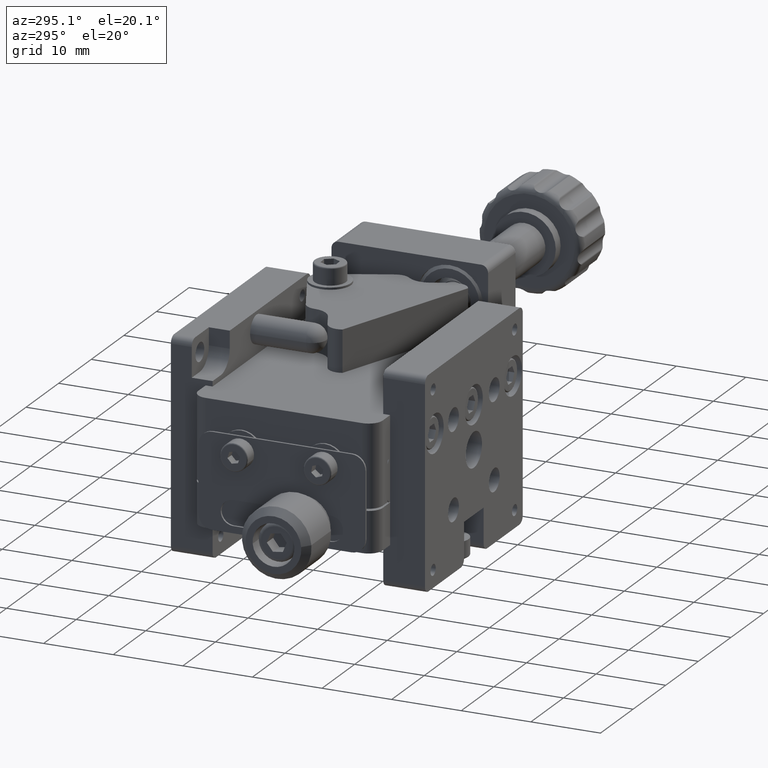
[diagram: clean part render]
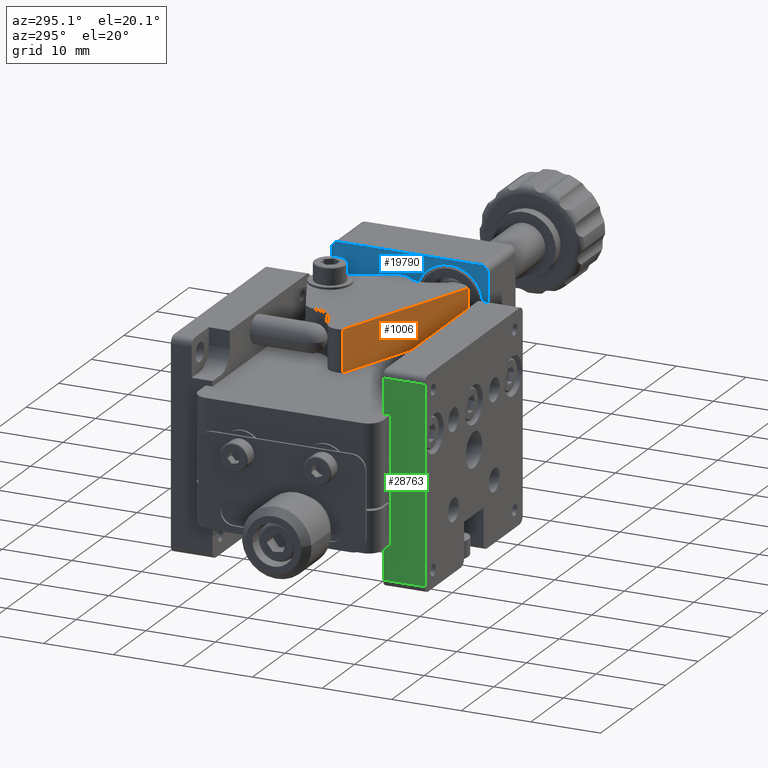
[diagram: same view with three faces highlighted in distinct colors, each labeled with its STEP entity id]
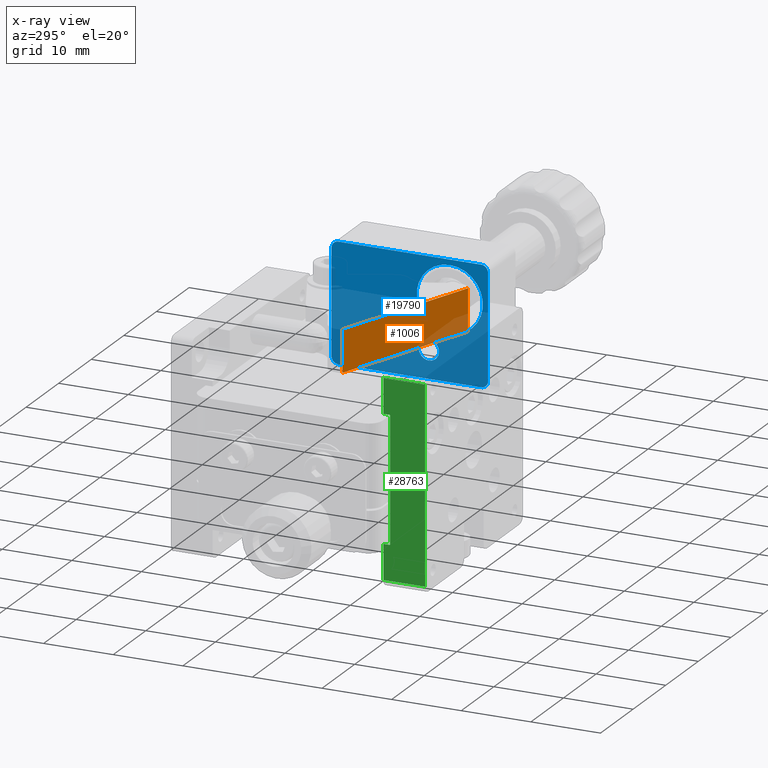
[diagram: x-ray of the same camera — body ghosted, the three highlighted faces saturated]
A machine part, auxiliary view with three faces highlighted in distinct colors.
The next image is the same camera in x-ray (body ghosted, the three faces saturated) — at least one of them is partly hidden behind the body in this view.
Their STEP definitions:

[orange] entity #1006 — the highlighted planar face has unit normal (0.3611, 0.9325, 0).
#252 = LINE ( 'NONE', #29475, #18531 ) ;
#384 = CARTESIAN_POINT ( 'NONE',  ( -3.687925685693755000, -21.24121784233175000, 39.00000000000002100 ) ) ;
#871 = CARTESIAN_POINT ( 'NONE',  ( 17.41283810770349300, -29.41176050088621000, 39.00000000000002100 ) ) ;
#1006 = ADVANCED_FACE ( 'NONE', ( #27394 ), #30885, .F. ) ;
#1494 = LINE ( 'NONE', #15317, #18598 ) ;
#1766 = DIRECTION ( 'NONE',  ( -0.9325308229079210000, 0.3610903824898630300, 0.0000000000000000000 ) ) ;
#2895 = VECTOR ( 'NONE', #22702, 1000.000000000000000 ) ;
#3777 = EDGE_CURVE ( 'NONE', #11350, #31624, #1494, .T. ) ;
#4632 = ORIENTED_EDGE ( 'NONE', *, *, #32793, .F. ) ;
#4745 = LINE ( 'NONE', #9566, #9890 ) ;
#5367 = CARTESIAN_POINT ( 'NONE',  ( -3.687925685693755000, -21.24121784233175000, 39.00000000000002100 ) ) ;
#7875 = DIRECTION ( 'NONE',  ( 0.3610903824898630800, 0.9325308229079211100, 0.0000000000000000000 ) ) ;
#7884 = ORIENTED_EDGE ( 'NONE', *, *, #3777, .T. ) ;
#8190 = DIRECTION ( 'NONE',  ( -0.9325308229079211100, 0.3610903824898630800, 0.0000000000000000000 ) ) ;
#8441 = LINE ( 'NONE', #5367, #2895 ) ;
#8976 = VERTEX_POINT ( 'NONE', #28725 ) ;
#9566 = CARTESIAN_POINT ( 'NONE',  ( -3.687925685693755000, -21.24121784233175000, 39.00000000000002100 ) ) ;
#9890 = VECTOR ( 'NONE', #32728, 1000.000000000000100 ) ;
#11350 = VERTEX_POINT ( 'NONE', #871 ) ;
#15317 = CARTESIAN_POINT ( 'NONE',  ( 17.41283810770349300, -29.41176050088621000, 39.00000000000002100 ) ) ;
#16067 = EDGE_LOOP ( 'NONE', ( #24706, #4632, #32922, #7884 ) ) ;
#16108 = EDGE_CURVE ( 'NONE', #11350, #16543, #4745, .T. ) ;
#16543 = VERTEX_POINT ( 'NONE', #27098 ) ;
#17682 = AXIS2_PLACEMENT_3D ( 'NONE', #384, #7875, #8190 ) ;
#18531 = VECTOR ( 'NONE', #1766, 1000.000000000000100 ) ;
#18598 = VECTOR ( 'NONE', #22799, 1000.000000000000000 ) ;
#22327 = EDGE_CURVE ( 'NONE', #31624, #8976, #252, .T. ) ;
#22702 = DIRECTION ( 'NONE',  ( 0.0000000000000000000, 0.0000000000000000000, 1.000000000000000000 ) ) ;
#22799 = DIRECTION ( 'NONE',  ( 0.0000000000000000000, 0.0000000000000000000, 1.000000000000000000 ) ) ;
#24706 = ORIENTED_EDGE ( 'NONE', *, *, #22327, .T. ) ;
#26193 = CARTESIAN_POINT ( 'NONE',  ( 17.41283810770349300, -29.41176050088621000, 45.00000000000002800 ) ) ;
#27098 = CARTESIAN_POINT ( 'NONE',  ( -3.687925685693722100, -21.24121784233177500, 39.00000000000002100 ) ) ;
#27394 = FACE_OUTER_BOUND ( 'NONE', #16067, .T. ) ;
#28725 = CARTESIAN_POINT ( 'NONE',  ( -3.687925685693755000, -21.24121784233175000, 45.00000000000002800 ) ) ;
#29475 = CARTESIAN_POINT ( 'NONE',  ( -3.687925685693755000, -21.24121784233175000, 45.00000000000002800 ) ) ;
#30885 = PLANE ( 'NONE',  #17682 ) ;
#31624 = VERTEX_POINT ( 'NONE', #26193 ) ;
#32728 = DIRECTION ( 'NONE',  ( -0.9325308229079210000, 0.3610903824898630300, 0.0000000000000000000 ) ) ;
#32793 = EDGE_CURVE ( 'NONE', #16543, #8976, #8441, .T. ) ;
#32922 = ORIENTED_EDGE ( 'NONE', *, *, #16108, .F. ) ;

[blue] entity #19790 — the highlighted planar face has unit normal (-1, 0, 0).
#114 = LINE ( 'NONE', #21206, #25599 ) ;
#190 = VERTEX_POINT ( 'NONE', #32283 ) ;
#464 = DIRECTION ( 'NONE',  ( 0.0000000000000000000, 0.0000000000000000000, 1.000000000000000000 ) ) ;
#587 = VECTOR ( 'NONE', #6408, 1000.000000000000000 ) ;
#818 = DIRECTION ( 'NONE',  ( 1.000000000000000000, -1.804112415015876900E-016, -6.984547439002462700E-032 ) ) ;
#852 = CARTESIAN_POINT ( 'NONE',  ( 18.76904537260123400, -23.13851180073592000, 33.54999999999999000 ) ) ;
#1235 = CARTESIAN_POINT ( 'NONE',  ( 18.76904537260123400, -26.13851180073595200, 42.49999999999999300 ) ) ;
#1767 = VERTEX_POINT ( 'NONE', #3693 ) ;
#2137 = ORIENTED_EDGE ( 'NONE', *, *, #2536, .T. ) ;
#2238 = DIRECTION ( 'NONE',  ( -1.000000000000000000, 1.804112415015876700E-016, 1.455977322838231900E-031 ) ) ;
#2473 = EDGE_CURVE ( 'NONE', #29333, #9446, #16326, .T. ) ;
#2536 = EDGE_CURVE ( 'NONE', #11380, #7956, #18326, .T. ) ;
#2666 = CARTESIAN_POINT ( 'NONE',  ( 18.76904537260123400, -9.138511800735864600, 47.00000000000007100 ) ) ;
#3636 = DIRECTION ( 'NONE',  ( 1.000000000000000000, -1.804112415015876900E-016, -6.984547439002462700E-032 ) ) ;
#3665 = CIRCLE ( 'NONE', #15216, 1.000000000000007800 ) ;
#3693 = CARTESIAN_POINT ( 'NONE',  ( 18.76904537260123400, -23.13851180073592000, 36.44999999999999600 ) ) ;
#4437 = FACE_BOUND ( 'NONE', #22384, .T. ) ;
#5089 = AXIS2_PLACEMENT_3D ( 'NONE', #33044, #25561, #17760 ) ;
#5497 = VERTEX_POINT ( 'NONE', #31947 ) ;
#5643 = EDGE_CURVE ( 'NONE', #29012, #15700, #32910, .T. ) ;
#5809 = CARTESIAN_POINT ( 'NONE',  ( 18.76904537260123400, -9.138511800735882300, 31.99999999999999300 ) ) ;
#6215 = LINE ( 'NONE', #27087, #587 ) ;
#6408 = DIRECTION ( 'NONE',  ( -1.804112415015852800E-016, -1.000000000000000000, -1.032160468206200300E-016 ) ) ;
#6580 = ORIENTED_EDGE ( 'NONE', *, *, #2473, .T. ) ;
#7208 = AXIS2_PLACEMENT_3D ( 'NONE', #23674, #10983, #16093 ) ;
#7935 = DIRECTION ( 'NONE',  ( 1.000000000000000000, -1.804112415015876900E-016, -6.984547439002462700E-032 ) ) ;
#7956 = VERTEX_POINT ( 'NONE', #28095 ) ;
#8024 = EDGE_CURVE ( 'NONE', #190, #5497, #20306, .T. ) ;
#8271 = EDGE_CURVE ( 'NONE', #9446, #29333, #9974, .T. ) ;
#8309 = DIRECTION ( 'NONE',  ( 0.0000000000000000000, 0.0000000000000000000, -1.000000000000000000 ) ) ;
#9137 = DIRECTION ( 'NONE',  ( 0.0000000000000000000, 0.0000000000000000000, -1.000000000000000000 ) ) ;
#9153 = CIRCLE ( 'NONE', #5089, 1.450000000000006800 ) ;
#9446 = VERTEX_POINT ( 'NONE', #28140 ) ;
#9568 = DIRECTION ( 'NONE',  ( 1.269763971340291200E-031, -1.032160468206200100E-016, 1.000000000000000000 ) ) ;
#9876 = ORIENTED_EDGE ( 'NONE', *, *, #24848, .T. ) ;
#9916 = AXIS2_PLACEMENT_3D ( 'NONE', #15942, #818, #8309 ) ;
#9974 = CIRCLE ( 'NONE', #19258, 4.750000000000024900 ) ;
#10983 = DIRECTION ( 'NONE',  ( 1.000000000000000000, -1.804112415015876900E-016, -6.984547439002462700E-032 ) ) ;
#11303 = ORIENTED_EDGE ( 'NONE', *, *, #18702, .T. ) ;
#11380 = VERTEX_POINT ( 'NONE', #5809 ) ;
#11723 = EDGE_CURVE ( 'NONE', #26134, #5497, #20127, .T. ) ;
#11851 = AXIS2_PLACEMENT_3D ( 'NONE', #32510, #2238, #9568 ) ;
#11906 = DIRECTION ( 'NONE',  ( 0.0000000000000000000, 0.0000000000000000000, 1.000000000000000000 ) ) ;
#11990 = CIRCLE ( 'NONE', #9916, 1.450000000000006800 ) ;
#12679 = ORIENTED_EDGE ( 'NONE', *, *, #26602, .T. ) ;
#13410 = ORIENTED_EDGE ( 'NONE', *, *, #8024, .T. ) ;
#14610 = VERTEX_POINT ( 'NONE', #26092 ) ;
#14707 = CARTESIAN_POINT ( 'NONE',  ( 18.76904537260123400, -30.63851180073599100, 48.00000000000007100 ) ) ;
#15216 = AXIS2_PLACEMENT_3D ( 'NONE', #29575, #24563, #23880 ) ;
#15617 = VECTOR ( 'NONE', #19788, 1000.000000000000000 ) ;
#15700 = VERTEX_POINT ( 'NONE', #20269 ) ;
#15763 = DIRECTION ( 'NONE',  ( 1.269763971340291200E-031, -1.032160468206200100E-016, 1.000000000000000000 ) ) ;
#15942 = CARTESIAN_POINT ( 'NONE',  ( 18.76904537260124100, -13.13851180073588100, 34.99999999999999300 ) ) ;
#16093 = DIRECTION ( 'NONE',  ( 0.0000000000000000000, 0.0000000000000000000, -1.000000000000000000 ) ) ;
#16326 = CIRCLE ( 'NONE', #18356, 4.750000000000024900 ) ;
#16588 = ORIENTED_EDGE ( 'NONE', *, *, #8271, .T. ) ;
#16885 = DIRECTION ( 'NONE',  ( 1.000000000000000000, -1.804112415015876900E-016, -6.984547439002462700E-032 ) ) ;
#16925 = VECTOR ( 'NONE', #26133, 1000.000000000000000 ) ;
#17663 = ORIENTED_EDGE ( 'NONE', *, *, #32920, .T. ) ;
#17760 = DIRECTION ( 'NONE',  ( 0.0000000000000000000, 0.0000000000000000000, -1.000000000000000000 ) ) ;
#18030 = LINE ( 'NONE', #32516, #15617 ) ;
#18156 = EDGE_LOOP ( 'NONE', ( #28800, #11303, #28188, #9876, #32770, #2137, #22507, #13410 ) ) ;
#18326 = CIRCLE ( 'NONE', #26283, 1.000000000000007800 ) ;
#18356 = AXIS2_PLACEMENT_3D ( 'NONE', #28875, #3636, #31448 ) ;
#18702 = EDGE_CURVE ( 'NONE', #26134, #24923, #3665, .T. ) ;
#19258 = AXIS2_PLACEMENT_3D ( 'NONE', #1235, #16885, #9137 ) ;
#19580 = EDGE_LOOP ( 'NONE', ( #30966, #20462 ) ) ;
#19788 = DIRECTION ( 'NONE',  ( 1.804112415015852800E-016, 1.000000000000000000, 1.032160468206200300E-016 ) ) ;
#19790 = ADVANCED_FACE ( 'NONE', ( #31880, #24716, #4437, #26705 ), #29833, .T. ) ;
#19844 = AXIS2_PLACEMENT_3D ( 'NONE', #31810, #24213, #31907 ) ;
#20127 = LINE ( 'NONE', #31136, #16925 ) ;
#20269 = CARTESIAN_POINT ( 'NONE',  ( 18.76904537260124100, -13.13851180073588200, 36.44999999999999600 ) ) ;
#20306 = CIRCLE ( 'NONE', #31452, 1.000000000000007800 ) ;
#20462 = ORIENTED_EDGE ( 'NONE', *, *, #25296, .T. ) ;
#21206 = CARTESIAN_POINT ( 'NONE',  ( 18.76904537260123400, -9.138511800735884100, 48.00000000000014200 ) ) ;
#22047 = DIRECTION ( 'NONE',  ( -1.000000000000000000, 1.804112415015876900E-016, 6.984547439002462700E-032 ) ) ;
#22384 = EDGE_LOOP ( 'NONE', ( #16588, #6580 ) ) ;
#22507 = ORIENTED_EDGE ( 'NONE', *, *, #31855, .F. ) ;
#22811 = EDGE_CURVE ( 'NONE', #14610, #24923, #6215, .T. ) ;
#22929 = CARTESIAN_POINT ( 'NONE',  ( 18.76904537260123400, -31.63851180073598700, 47.00000000000007100 ) ) ;
#23255 = CARTESIAN_POINT ( 'NONE',  ( 18.76904537260124100, -13.13851180073588100, 34.99999999999999300 ) ) ;
#23287 = DIRECTION ( 'NONE',  ( -1.000000000000000000, 1.804112415015876900E-016, 6.984547439002462700E-032 ) ) ;
#23472 = DIRECTION ( 'NONE',  ( 0.0000000000000000000, 0.0000000000000000000, -1.000000000000000000 ) ) ;
#23674 = CARTESIAN_POINT ( 'NONE',  ( 18.76904537260123400, -23.13851180073592000, 34.99999999999999300 ) ) ;
#23880 = DIRECTION ( 'NONE',  ( 0.0000000000000000000, 0.0000000000000000000, 1.000000000000000000 ) ) ;
#24213 = DIRECTION ( 'NONE',  ( -1.000000000000000000, 1.804112415015876900E-016, 6.984547439002462700E-032 ) ) ;
#24502 = CARTESIAN_POINT ( 'NONE',  ( 18.76904537260124100, -10.13851180073588200, 31.99999999999999300 ) ) ;
#24563 = DIRECTION ( 'NONE',  ( -1.000000000000000000, 1.804112415015876900E-016, 6.984547439002462700E-032 ) ) ;
#24676 = VERTEX_POINT ( 'NONE', #852 ) ;
#24713 = EDGE_CURVE ( 'NONE', #11380, #30591, #114, .T. ) ;
#24716 = FACE_BOUND ( 'NONE', #32500, .T. ) ;
#24812 = CARTESIAN_POINT ( 'NONE',  ( 18.76904537260124100, -13.13851180073588100, 33.54999999999999000 ) ) ;
#24848 = EDGE_CURVE ( 'NONE', #14610, #30591, #27575, .T. ) ;
#24923 = VERTEX_POINT ( 'NONE', #14707 ) ;
#25296 = EDGE_CURVE ( 'NONE', #15700, #29012, #11990, .T. ) ;
#25561 = DIRECTION ( 'NONE',  ( 1.000000000000000000, -1.804112415015876900E-016, -6.984547439002462700E-032 ) ) ;
#25599 = VECTOR ( 'NONE', #15763, 1000.000000000000000 ) ;
#26046 = CARTESIAN_POINT ( 'NONE',  ( 18.76904537260123400, -26.13851180073595200, 47.24999999999999300 ) ) ;
#26092 = CARTESIAN_POINT ( 'NONE',  ( 18.76904537260124100, -10.13851180073589100, 48.00000000000014200 ) ) ;
#26133 = DIRECTION ( 'NONE',  ( -1.269763971340291200E-031, 1.032160468206200100E-016, -1.000000000000000000 ) ) ;
#26134 = VERTEX_POINT ( 'NONE', #22929 ) ;
#26283 = AXIS2_PLACEMENT_3D ( 'NONE', #24502, #22047, #11906 ) ;
#26602 = EDGE_CURVE ( 'NONE', #24676, #1767, #9153, .T. ) ;
#26705 = FACE_OUTER_BOUND ( 'NONE', #18156, .T. ) ;
#26906 = AXIS2_PLACEMENT_3D ( 'NONE', #23255, #7935, #23472 ) ;
#27087 = CARTESIAN_POINT ( 'NONE',  ( 18.76904537260123400, -31.63851180073599400, 48.00000000000007100 ) ) ;
#27575 = CIRCLE ( 'NONE', #19844, 1.000000000000007800 ) ;
#28095 = CARTESIAN_POINT ( 'NONE',  ( 18.76904537260124100, -10.13851180073587200, 30.99999999999999600 ) ) ;
#28140 = CARTESIAN_POINT ( 'NONE',  ( 18.76904537260123400, -26.13851180073595200, 37.74999999999997200 ) ) ;
#28188 = ORIENTED_EDGE ( 'NONE', *, *, #22811, .F. ) ;
#28800 = ORIENTED_EDGE ( 'NONE', *, *, #11723, .F. ) ;
#28875 = CARTESIAN_POINT ( 'NONE',  ( 18.76904537260123400, -26.13851180073595200, 42.49999999999999300 ) ) ;
#29012 = VERTEX_POINT ( 'NONE', #24812 ) ;
#29333 = VERTEX_POINT ( 'NONE', #26046 ) ;
#29575 = CARTESIAN_POINT ( 'NONE',  ( 18.76904537260123400, -30.63851180073599100, 47.00000000000007100 ) ) ;
#29833 = PLANE ( 'NONE',  #11851 ) ;
#30308 = CIRCLE ( 'NONE', #7208, 1.450000000000006800 ) ;
#30591 = VERTEX_POINT ( 'NONE', #2666 ) ;
#30655 = CARTESIAN_POINT ( 'NONE',  ( 18.76904537260123400, -30.63851180073599100, 31.99999999999999300 ) ) ;
#30966 = ORIENTED_EDGE ( 'NONE', *, *, #5643, .T. ) ;
#31136 = CARTESIAN_POINT ( 'NONE',  ( 18.76904537260123400, -31.63851180073599400, 48.00000000000007100 ) ) ;
#31448 = DIRECTION ( 'NONE',  ( 0.0000000000000000000, 0.0000000000000000000, -1.000000000000000000 ) ) ;
#31452 = AXIS2_PLACEMENT_3D ( 'NONE', #30655, #23287, #464 ) ;
#31810 = CARTESIAN_POINT ( 'NONE',  ( 18.76904537260124100, -10.13851180073586600, 47.00000000000007100 ) ) ;
#31855 = EDGE_CURVE ( 'NONE', #190, #7956, #18030, .T. ) ;
#31880 = FACE_BOUND ( 'NONE', #19580, .T. ) ;
#31907 = DIRECTION ( 'NONE',  ( 0.0000000000000000000, 0.0000000000000000000, 1.000000000000000000 ) ) ;
#31947 = CARTESIAN_POINT ( 'NONE',  ( 18.76904537260123400, -31.63851180073605500, 31.99999999999999300 ) ) ;
#32283 = CARTESIAN_POINT ( 'NONE',  ( 18.76904537260123400, -30.63851180073595500, 30.99999999999999300 ) ) ;
#32500 = EDGE_LOOP ( 'NONE', ( #12679, #17663 ) ) ;
#32510 = CARTESIAN_POINT ( 'NONE',  ( 18.76904537260123400, -20.38851180073592000, 39.50000000000000000 ) ) ;
#32516 = CARTESIAN_POINT ( 'NONE',  ( 18.76904537260123400, -31.63851180073605500, 30.99999999999999300 ) ) ;
#32770 = ORIENTED_EDGE ( 'NONE', *, *, #24713, .F. ) ;
#32910 = CIRCLE ( 'NONE', #26906, 1.450000000000006800 ) ;
#32920 = EDGE_CURVE ( 'NONE', #1767, #24676, #30308, .T. ) ;
#33044 = CARTESIAN_POINT ( 'NONE',  ( 18.76904537260123400, -23.13851180073592000, 34.99999999999999300 ) ) ;

[green] entity #28763 — the highlighted planar face has unit normal (1, -0, 0).
#179 = ORIENTED_EDGE ( 'NONE', *, *, #26710, .T. ) ;
#398 = CARTESIAN_POINT ( 'NONE',  ( -15.53095462739877100, -32.63851180073592000, 16.00000000000000400 ) ) ;
#1321 = AXIS2_PLACEMENT_3D ( 'NONE', #3627, #5970, #21501 ) ;
#1385 = CARTESIAN_POINT ( 'NONE',  ( -15.53095462739877100, -33.63851180073592000, 21.00000000000000400 ) ) ;
#1485 = ORIENTED_EDGE ( 'NONE', *, *, #29163, .T. ) ;
#1904 = ORIENTED_EDGE ( 'NONE', *, *, #30425, .T. ) ;
#2865 = LINE ( 'NONE', #11277, #23158 ) ;
#3627 = CARTESIAN_POINT ( 'NONE',  ( -15.53095462739877100, -32.63851180073592000, 45.00000000000000000 ) ) ;
#4167 = LINE ( 'NONE', #6208, #26466 ) ;
#5000 = DIRECTION ( 'NONE',  ( -0.0000000000000000000, -1.000000000000000000, 0.0000000000000000000 ) ) ;
#5774 = LINE ( 'NONE', #18569, #17675 ) ;
#5970 = DIRECTION ( 'NONE',  ( 1.000000000000000000, -0.0000000000000000000, 0.0000000000000000000 ) ) ;
#6194 = EDGE_CURVE ( 'NONE', #12463, #20436, #4167, .T. ) ;
#6208 = CARTESIAN_POINT ( 'NONE',  ( -15.53095462739877100, -32.63851180073592000, 45.00000000000000000 ) ) ;
#7046 = VERTEX_POINT ( 'NONE', #32489 ) ;
#7109 = VECTOR ( 'NONE', #26150, 1000.000000000000000 ) ;
#7390 = LINE ( 'NONE', #21016, #26880 ) ;
#7611 = CARTESIAN_POINT ( 'NONE',  ( -15.53095462739877100, -32.63851180073592000, 44.00000000000000000 ) ) ;
#7738 = CARTESIAN_POINT ( 'NONE',  ( -15.53095462739877100, -32.63851180073592000, 16.00000000000000400 ) ) ;
#8346 = CARTESIAN_POINT ( 'NONE',  ( -15.53095462739877100, -33.63851180073592000, 45.00000000000000000 ) ) ;
#8866 = DIRECTION ( 'NONE',  ( -0.0000000000000000000, -0.0000000000000000000, 1.000000000000000000 ) ) ;
#10508 = VECTOR ( 'NONE', #31919, 1000.000000000000000 ) ;
#10910 = LINE ( 'NONE', #29253, #10508 ) ;
#10934 = VERTEX_POINT ( 'NONE', #32526 ) ;
#11262 = DIRECTION ( 'NONE',  ( -0.0000000000000000000, -0.0000000000000000000, 1.000000000000000000 ) ) ;
#11277 = CARTESIAN_POINT ( 'NONE',  ( -15.53095462739877100, -38.63851180073592000, 45.00000000000000000 ) ) ;
#11351 = EDGE_CURVE ( 'NONE', #12463, #7046, #7390, .T. ) ;
#11790 = CARTESIAN_POINT ( 'NONE',  ( -15.53095462739877100, -32.63851180073592000, 39.00000000000000000 ) ) ;
#12099 = ORIENTED_EDGE ( 'NONE', *, *, #14214, .T. ) ;
#12463 = VERTEX_POINT ( 'NONE', #11790 ) ;
#12705 = EDGE_CURVE ( 'NONE', #32349, #26206, #5774, .T. ) ;
#12918 = VECTOR ( 'NONE', #17688, 1000.000000000000000 ) ;
#13128 = ORIENTED_EDGE ( 'NONE', *, *, #16395, .F. ) ;
#14214 = EDGE_CURVE ( 'NONE', #14904, #10934, #2865, .T. ) ;
#14904 = VERTEX_POINT ( 'NONE', #30285 ) ;
#15005 = LINE ( 'NONE', #8346, #7109 ) ;
#16144 = PLANE ( 'NONE',  #1321 ) ;
#16395 = EDGE_CURVE ( 'NONE', #20291, #7046, #15005, .T. ) ;
#17675 = VECTOR ( 'NONE', #26479, 1000.000000000000000 ) ;
#17688 = DIRECTION ( 'NONE',  ( 0.0000000000000000000, 1.000000000000000000, -0.0000000000000000000 ) ) ;
#18569 = CARTESIAN_POINT ( 'NONE',  ( -15.53095462739877100, -32.63851180073592000, 45.00000000000000000 ) ) ;
#18667 = DIRECTION ( 'NONE',  ( 0.0000000000000000000, -1.000000000000000000, 0.0000000000000000000 ) ) ;
#18711 = CARTESIAN_POINT ( 'NONE',  ( -15.53095462739877100, -32.63851180073592000, 44.00000000000000000 ) ) ;
#20291 = VERTEX_POINT ( 'NONE', #1385 ) ;
#20436 = VERTEX_POINT ( 'NONE', #18711 ) ;
#21016 = CARTESIAN_POINT ( 'NONE',  ( -15.53095462739877100, -32.63851180073592000, 39.00000000000000000 ) ) ;
#21501 = DIRECTION ( 'NONE',  ( 0.0000000000000000000, 0.0000000000000000000, -1.000000000000000000 ) ) ;
#22877 = EDGE_LOOP ( 'NONE', ( #13128, #1904, #30048, #179, #12099, #1485, #24056, #23206 ) ) ;
#23158 = VECTOR ( 'NONE', #8866, 1000.000000000000000 ) ;
#23206 = ORIENTED_EDGE ( 'NONE', *, *, #11351, .T. ) ;
#24056 = ORIENTED_EDGE ( 'NONE', *, *, #6194, .F. ) ;
#25482 = LINE ( 'NONE', #398, #27083 ) ;
#25920 = CARTESIAN_POINT ( 'NONE',  ( -15.53095462739877100, -32.63851180073592000, 21.00000000000000400 ) ) ;
#26150 = DIRECTION ( 'NONE',  ( -0.0000000000000000000, 0.0000000000000000000, 1.000000000000000000 ) ) ;
#26206 = VERTEX_POINT ( 'NONE', #25920 ) ;
#26466 = VECTOR ( 'NONE', #11262, 1000.000000000000000 ) ;
#26479 = DIRECTION ( 'NONE',  ( -0.0000000000000000000, -0.0000000000000000000, 1.000000000000000000 ) ) ;
#26710 = EDGE_CURVE ( 'NONE', #32349, #14904, #25482, .T. ) ;
#26880 = VECTOR ( 'NONE', #18667, 1000.000000000000000 ) ;
#27083 = VECTOR ( 'NONE', #5000, 1000.000000000000000 ) ;
#28763 = ADVANCED_FACE ( 'NONE', ( #32921 ), #16144, .F. ) ;
#29163 = EDGE_CURVE ( 'NONE', #10934, #20436, #29730, .T. ) ;
#29253 = CARTESIAN_POINT ( 'NONE',  ( -15.53095462739877100, -32.63851180073592000, 21.00000000000000000 ) ) ;
#29730 = LINE ( 'NONE', #7611, #12918 ) ;
#30048 = ORIENTED_EDGE ( 'NONE', *, *, #12705, .F. ) ;
#30285 = CARTESIAN_POINT ( 'NONE',  ( -15.53095462739877100, -38.63851180073592000, 16.00000000000000400 ) ) ;
#30425 = EDGE_CURVE ( 'NONE', #20291, #26206, #10910, .T. ) ;
#31919 = DIRECTION ( 'NONE',  ( 0.0000000000000000000, 1.000000000000000000, 0.0000000000000000000 ) ) ;
#32349 = VERTEX_POINT ( 'NONE', #7738 ) ;
#32489 = CARTESIAN_POINT ( 'NONE',  ( -15.53095462739877100, -33.63851180073592000, 39.00000000000000000 ) ) ;
#32526 = CARTESIAN_POINT ( 'NONE',  ( -15.53095462739877100, -38.63851180073592000, 44.00000000000000000 ) ) ;
#32921 = FACE_OUTER_BOUND ( 'NONE', #22877, .T. ) ;